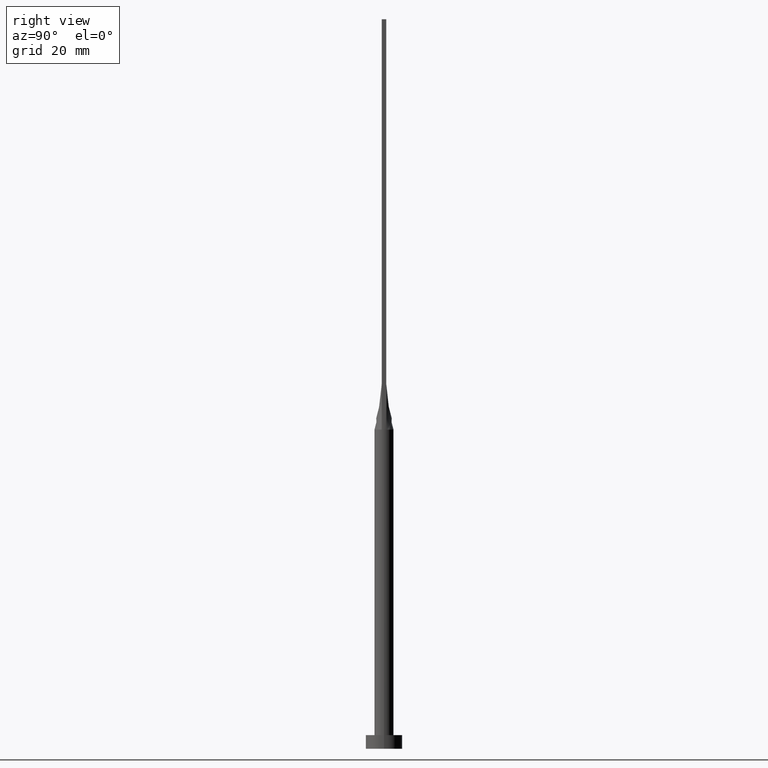
[diagram: clean part render]
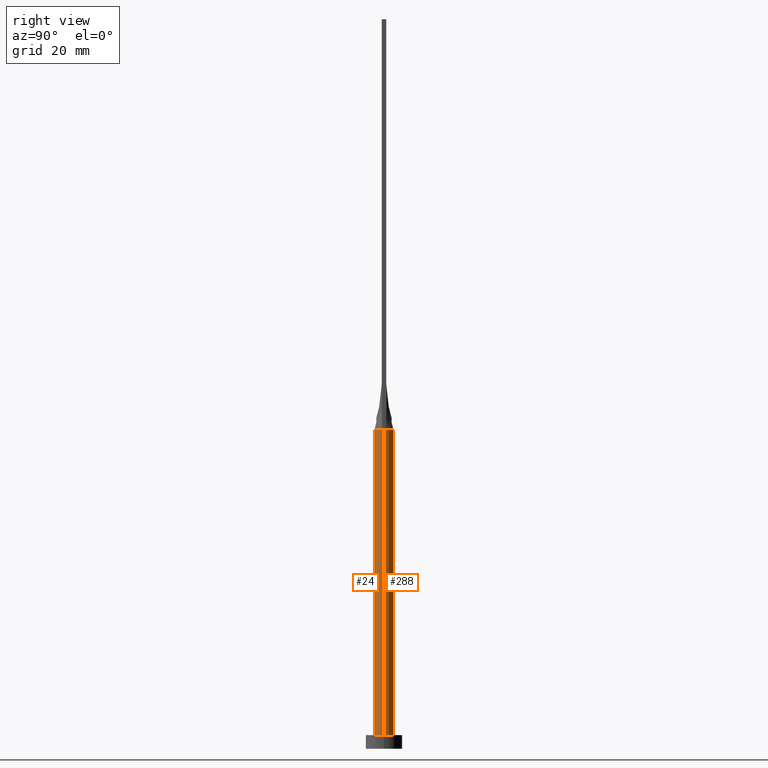
[diagram: same view with one multi-face feature highlighted, each face labeled with its STEP entity id]
A machine part, right view. The highlighted faces form ONE feature: a constant-radius fillet chain: 2 tangent blend faces with common blend radius 2.1 mm. The faces share edges in the B-rep.
Their STEP definitions:
[1] entity #24 (Cylinder):
#1 = CARTESIAN_POINT ( 'NONE',  ( 2.031027953490633031, -0.5344816358097418396, 70.00000000000000000 ) ) ;
#10 = DIRECTION ( 'NONE',  ( 1.000000000000000000, 0.000000000000000000, 0.000000000000000000 ) ) ;
#24 = ADVANCED_FACE ( 'NONE', ( #125 ), #305, .T. ) ;
#27 = ORIENTED_EDGE ( 'NONE', *, *, #136, .T. ) ;
#41 = CARTESIAN_POINT ( 'NONE',  ( -2.100000000000000089, 0.000000000000000000, 3.000000000000000000 ) ) ;
#52 = EDGE_LOOP ( 'NONE', ( #440, #500, #238, #504, #320, #27 ) ) ;
#64 = EDGE_CURVE ( 'NONE', #257, #347, #468, .T. ) ;
#73 = CARTESIAN_POINT ( 'NONE',  ( 0.000000000000000000, 0.000000000000000000, 70.00000000000000000 ) ) ;
#78 = EDGE_CURVE ( 'NONE', #347, #261, #360, .T. ) ;
#83 = EDGE_CURVE ( 'NONE', #261, #91, #172, .T. ) ;
#91 = VERTEX_POINT ( 'NONE', #428 ) ;
#101 = DIRECTION ( 'NONE',  ( 0.000000000000000000, 0.000000000000000000, 1.000000000000000000 ) ) ;
#105 = AXIS2_PLACEMENT_3D ( 'NONE', #551, #101, #110 ) ;
#110 = DIRECTION ( 'NONE',  ( 1.000000000000000000, 0.000000000000000000, 0.000000000000000000 ) ) ;
#125 = FACE_OUTER_BOUND ( 'NONE', #52, .T. ) ;
#133 = VECTOR ( 'NONE', #550, 1000.000000000000000 ) ;
#136 = EDGE_CURVE ( 'NONE', #202, #201, #499, .T. ) ;
#162 = AXIS2_PLACEMENT_3D ( 'NONE', #383, #548, #10 ) ;
#172 = CIRCLE ( 'NONE', #405, 2.100000000000000089 ) ;
#201 = VERTEX_POINT ( 'NONE', #507 ) ;
#202 = VERTEX_POINT ( 'NONE', #41 ) ;
#228 = CARTESIAN_POINT ( 'NONE',  ( -2.100000000000000089, 0.000000000000000000, 70.00000000000000000 ) ) ;
#236 = CARTESIAN_POINT ( 'NONE',  ( 0.000000000000000000, 0.000000000000000000, 70.00000000000000000 ) ) ;
#237 = AXIS2_PLACEMENT_3D ( 'NONE', #258, #434, #384 ) ;
#238 = ORIENTED_EDGE ( 'NONE', *, *, #78, .F. ) ;
#256 = DIRECTION ( 'NONE',  ( -0.000000000000000000, -0.000000000000000000, -1.000000000000000000 ) ) ;
#257 = VERTEX_POINT ( 'NONE', #484 ) ;
#258 = CARTESIAN_POINT ( 'NONE',  ( 0.000000000000000000, 0.000000000000000000, 3.000000000000000000 ) ) ;
#261 = VERTEX_POINT ( 'NONE', #1 ) ;
#262 = CARTESIAN_POINT ( 'NONE',  ( -2.031004407172260162, -0.5344754071304557153, 70.00000000000000000 ) ) ;
#283 = LINE ( 'NONE', #460, #489 ) ;
#293 = DIRECTION ( 'NONE',  ( 1.000000000000000000, 4.440892098500626951E-15, 0.000000000000000000 ) ) ;
#305 = CYLINDRICAL_SURFACE ( 'NONE', #527, 2.100000000000000089 ) ;
#320 = ORIENTED_EDGE ( 'NONE', *, *, #431, .T. ) ;
#347 = VERTEX_POINT ( 'NONE', #262 ) ;
#360 = CIRCLE ( 'NONE', #105, 2.100000000000000089 ) ;
#383 = CARTESIAN_POINT ( 'NONE',  ( 0.000000000000000000, 0.000000000000000000, 70.00000000000000000 ) ) ;
#384 = DIRECTION ( 'NONE',  ( 1.000000000000000000, 0.000000000000000000, 0.000000000000000000 ) ) ;
#405 = AXIS2_PLACEMENT_3D ( 'NONE', #236, #432, #293 ) ;
#406 = EDGE_CURVE ( 'NONE', #91, #201, #283, .T. ) ;
#426 = LINE ( 'NONE', #228, #133 ) ;
#428 = CARTESIAN_POINT ( 'NONE',  ( 2.100000000000000089, 3.372022381799045987E-17, 70.00000000000000000 ) ) ;
#431 = EDGE_CURVE ( 'NONE', #257, #202, #426, .T. ) ;
#432 = DIRECTION ( 'NONE',  ( 0.000000000000000000, 0.000000000000000000, 1.000000000000000000 ) ) ;
#434 = DIRECTION ( 'NONE',  ( 0.000000000000000000, 0.000000000000000000, 1.000000000000000000 ) ) ;
#440 = ORIENTED_EDGE ( 'NONE', *, *, #406, .F. ) ;
#460 = CARTESIAN_POINT ( 'NONE',  ( 2.100000000000000089, 2.571758278209441957E-16, 70.00000000000000000 ) ) ;
#464 = DIRECTION ( 'NONE',  ( -0.000000000000000000, -0.000000000000000000, -1.000000000000000000 ) ) ;
#468 = CIRCLE ( 'NONE', #162, 2.100000000000000089 ) ;
#484 = CARTESIAN_POINT ( 'NONE',  ( -2.100000000000000089, -1.080980291041873360E-16, 70.00000000000000000 ) ) ;
#488 = DIRECTION ( 'NONE',  ( -1.000000000000000000, 0.000000000000000000, 0.000000000000000000 ) ) ;
#489 = VECTOR ( 'NONE', #464, 1000.000000000000000 ) ;
#499 = CIRCLE ( 'NONE', #237, 2.100000000000000089 ) ;
#500 = ORIENTED_EDGE ( 'NONE', *, *, #83, .F. ) ;
#504 = ORIENTED_EDGE ( 'NONE', *, *, #64, .F. ) ;
#507 = CARTESIAN_POINT ( 'NONE',  ( 2.100000000000000089, 2.571758278209441957E-16, 3.000000000000000000 ) ) ;
#527 = AXIS2_PLACEMENT_3D ( 'NONE', #73, #256, #488 ) ;
#548 = DIRECTION ( 'NONE',  ( 0.000000000000000000, 0.000000000000000000, 1.000000000000000000 ) ) ;
#550 = DIRECTION ( 'NONE',  ( -0.000000000000000000, -0.000000000000000000, -1.000000000000000000 ) ) ;
#551 = CARTESIAN_POINT ( 'NONE',  ( 0.000000000000000000, 0.000000000000000000, 70.00000000000000000 ) ) ;
[2] entity #288 (Cylinder):
#7 = CARTESIAN_POINT ( 'NONE',  ( 1.987786580065029174, 0.6981017315960605929, 70.00000000000000000 ) ) ;
#41 = CARTESIAN_POINT ( 'NONE',  ( -2.100000000000000089, 0.000000000000000000, 3.000000000000000000 ) ) ;
#60 = CARTESIAN_POINT ( 'NONE',  ( 1.583604922800830428, 1.399063468093436624, 70.00000000000000000 ) ) ;
#90 = AXIS2_PLACEMENT_3D ( 'NONE', #287, #161, #158 ) ;
#91 = VERTEX_POINT ( 'NONE', #428 ) ;
#92 = CARTESIAN_POINT ( 'NONE',  ( -1.920830191244604412, 0.8725264301372623876, 70.00000000000000000 ) ) ;
#103 = CARTESIAN_POINT ( 'NONE',  ( -1.021961681204346384, 1.852908961101259022, 70.00000000000001421 ) ) ;
#113 = AXIS2_PLACEMENT_3D ( 'NONE', #511, #235, #336 ) ;
#118 = ORIENTED_EDGE ( 'NONE', *, *, #475, .F. ) ;
#133 = VECTOR ( 'NONE', #550, 1000.000000000000000 ) ;
#138 = CARTESIAN_POINT ( 'NONE',  ( 0.5389299406762297906, 2.046272663899431077, 70.00000000000000000 ) ) ;
#156 = EDGE_CURVE ( 'NONE', #201, #202, #241, .T. ) ;
#158 = DIRECTION ( 'NONE',  ( 1.000000000000000000, 0.000000000000000000, 0.000000000000000000 ) ) ;
#161 = DIRECTION ( 'NONE',  ( 0.000000000000000000, 0.000000000000000000, 1.000000000000000000 ) ) ;
#182 = CARTESIAN_POINT ( 'NONE',  ( -0.2698109971861040179, 2.100000000000000089, 70.00000000000001421 ) ) ;
#184 = CARTESIAN_POINT ( 'NONE',  ( 2.030996101999494652, 0.5344731476277209126, 70.00000000000000000 ) ) ;
#185 = EDGE_CURVE ( 'NONE', #376, #257, #217, .T. ) ;
#199 = VERTEX_POINT ( 'NONE', #554 ) ;
#201 = VERTEX_POINT ( 'NONE', #507 ) ;
#202 = VERTEX_POINT ( 'NONE', #41 ) ;
#217 = CIRCLE ( 'NONE', #113, 2.100000000000000089 ) ;
#219 = CARTESIAN_POINT ( 'NONE',  ( -2.031019593402089818, 0.5344793603115657321, 70.00000000000000000 ) ) ;
#228 = CARTESIAN_POINT ( 'NONE',  ( -2.100000000000000089, 0.000000000000000000, 70.00000000000000000 ) ) ;
#233 = CARTESIAN_POINT ( 'NONE',  ( 1.021961681204346606, 1.852908961101259244, 70.00000000000001421 ) ) ;
#235 = DIRECTION ( 'NONE',  ( 0.000000000000000000, 0.000000000000000000, 1.000000000000000000 ) ) ;
#241 = CIRCLE ( 'NONE', #289, 2.100000000000000089 ) ;
#242 = AXIS2_PLACEMENT_3D ( 'NONE', #487, #531, #453 ) ;
#257 = VERTEX_POINT ( 'NONE', #484 ) ;
#283 = LINE ( 'NONE', #460, #489 ) ;
#287 = CARTESIAN_POINT ( 'NONE',  ( 0.000000000000000000, 0.000000000000000000, 70.00000000000000000 ) ) ;
#288 = ADVANCED_FACE ( 'NONE', ( #346 ), #356, .T. ) ;
#289 = AXIS2_PLACEMENT_3D ( 'NONE', #525, #297, #479 ) ;
#294 = ORIENTED_EDGE ( 'NONE', *, *, #431, .F. ) ;
#297 = DIRECTION ( 'NONE',  ( 0.000000000000000000, 0.000000000000000000, 1.000000000000000000 ) ) ;
#319 = CARTESIAN_POINT ( 'NONE',  ( -2.031019593402089818, 0.5344793603115657321, 70.00000000000000000 ) ) ;
#322 = CARTESIAN_POINT ( 'NONE',  ( -1.235326090059014836, 1.714395692508636326, 70.00000000000001421 ) ) ;
#324 = ORIENTED_EDGE ( 'NONE', *, *, #406, .T. ) ;
#326 = EDGE_LOOP ( 'NONE', ( #433, #324, #334, #294, #407, #118 ) ) ;
#334 = ORIENTED_EDGE ( 'NONE', *, *, #156, .T. ) ;
#336 = DIRECTION ( 'NONE',  ( 1.000000000000000000, 0.000000000000000000, 0.000000000000000000 ) ) ;
#346 = FACE_OUTER_BOUND ( 'NONE', #326, .T. ) ;
#356 = CYLINDRICAL_SURFACE ( 'NONE', #242, 2.100000000000000089 ) ;
#366 = CARTESIAN_POINT ( 'NONE',  ( -1.583604922800830428, 1.399063468093436402, 70.00000000000000000 ) ) ;
#370 = CARTESIAN_POINT ( 'NONE',  ( -1.987786580065029174, 0.6981017315960602598, 70.00000000000000000 ) ) ;
#373 = CARTESIAN_POINT ( 'NONE',  ( -0.5389299406762299016, 2.046272663899431965, 70.00000000000001421 ) ) ;
#376 = VERTEX_POINT ( 'NONE', #219 ) ;
#378 = B_SPLINE_CURVE_WITH_KNOTS ( 'NONE', 3,
 ( #184, #7, #514, #546, #60, #467, #233, #138, #424, #182, #373, #103, #322, #366, #508, #92, #370, #319 ),
 .UNSPECIFIED., .F., .F.,
 ( 4, 2, 2, 2, 2, 2, 2, 2, 4 ),
 ( 0.000000000000000000, 0.1250000000000000278, 0.2500000000000000555, 0.3750000000000001110, 0.5000000000000000000, 0.6250000000000000000, 0.7500000000000000000, 0.8750000000000001110, 1.000000000000000000 ),
 .UNSPECIFIED. ) ;
#406 = EDGE_CURVE ( 'NONE', #91, #201, #283, .T. ) ;
#407 = ORIENTED_EDGE ( 'NONE', *, *, #185, .F. ) ;
#424 = CARTESIAN_POINT ( 'NONE',  ( 0.2698109971861041290, 2.100000000000000089, 70.00000000000000000 ) ) ;
#426 = LINE ( 'NONE', #228, #133 ) ;
#428 = CARTESIAN_POINT ( 'NONE',  ( 2.100000000000000089, 3.372022381799045987E-17, 70.00000000000000000 ) ) ;
#431 = EDGE_CURVE ( 'NONE', #257, #202, #426, .T. ) ;
#433 = ORIENTED_EDGE ( 'NONE', *, *, #523, .F. ) ;
#453 = DIRECTION ( 'NONE',  ( -1.000000000000000000, 0.000000000000000000, 0.000000000000000000 ) ) ;
#460 = CARTESIAN_POINT ( 'NONE',  ( 2.100000000000000089, 2.571758278209441957E-16, 70.00000000000000000 ) ) ;
#464 = DIRECTION ( 'NONE',  ( -0.000000000000000000, -0.000000000000000000, -1.000000000000000000 ) ) ;
#467 = CARTESIAN_POINT ( 'NONE',  ( 1.235326090059014614, 1.714395692508636770, 70.00000000000001421 ) ) ;
#471 = CIRCLE ( 'NONE', #90, 2.100000000000000089 ) ;
#475 = EDGE_CURVE ( 'NONE', #199, #376, #378, .T. ) ;
#479 = DIRECTION ( 'NONE',  ( 1.000000000000000000, 0.000000000000000000, 0.000000000000000000 ) ) ;
#484 = CARTESIAN_POINT ( 'NONE',  ( -2.100000000000000089, -1.080980291041873360E-16, 70.00000000000000000 ) ) ;
#487 = CARTESIAN_POINT ( 'NONE',  ( 0.000000000000000000, 0.000000000000000000, 70.00000000000000000 ) ) ;
#489 = VECTOR ( 'NONE', #464, 1000.000000000000000 ) ;
#507 = CARTESIAN_POINT ( 'NONE',  ( 2.100000000000000089, 2.571758278209441957E-16, 3.000000000000000000 ) ) ;
#508 = CARTESIAN_POINT ( 'NONE',  ( -1.719043754744861596, 1.223020672007445242, 70.00000000000000000 ) ) ;
#511 = CARTESIAN_POINT ( 'NONE',  ( 0.000000000000000000, 0.000000000000000000, 70.00000000000000000 ) ) ;
#514 = CARTESIAN_POINT ( 'NONE',  ( 1.920830191244603746, 0.8725264301372623876, 69.99999999999998579 ) ) ;
#523 = EDGE_CURVE ( 'NONE', #91, #199, #471, .T. ) ;
#525 = CARTESIAN_POINT ( 'NONE',  ( 0.000000000000000000, 0.000000000000000000, 3.000000000000000000 ) ) ;
#531 = DIRECTION ( 'NONE',  ( -0.000000000000000000, -0.000000000000000000, -1.000000000000000000 ) ) ;
#546 = CARTESIAN_POINT ( 'NONE',  ( 1.719043754744862040, 1.223020672007445464, 69.99999999999998579 ) ) ;
#550 = DIRECTION ( 'NONE',  ( -0.000000000000000000, -0.000000000000000000, -1.000000000000000000 ) ) ;
#554 = CARTESIAN_POINT ( 'NONE',  ( 2.030996101999494652, 0.5344731476277209126, 70.00000000000000000 ) ) ;